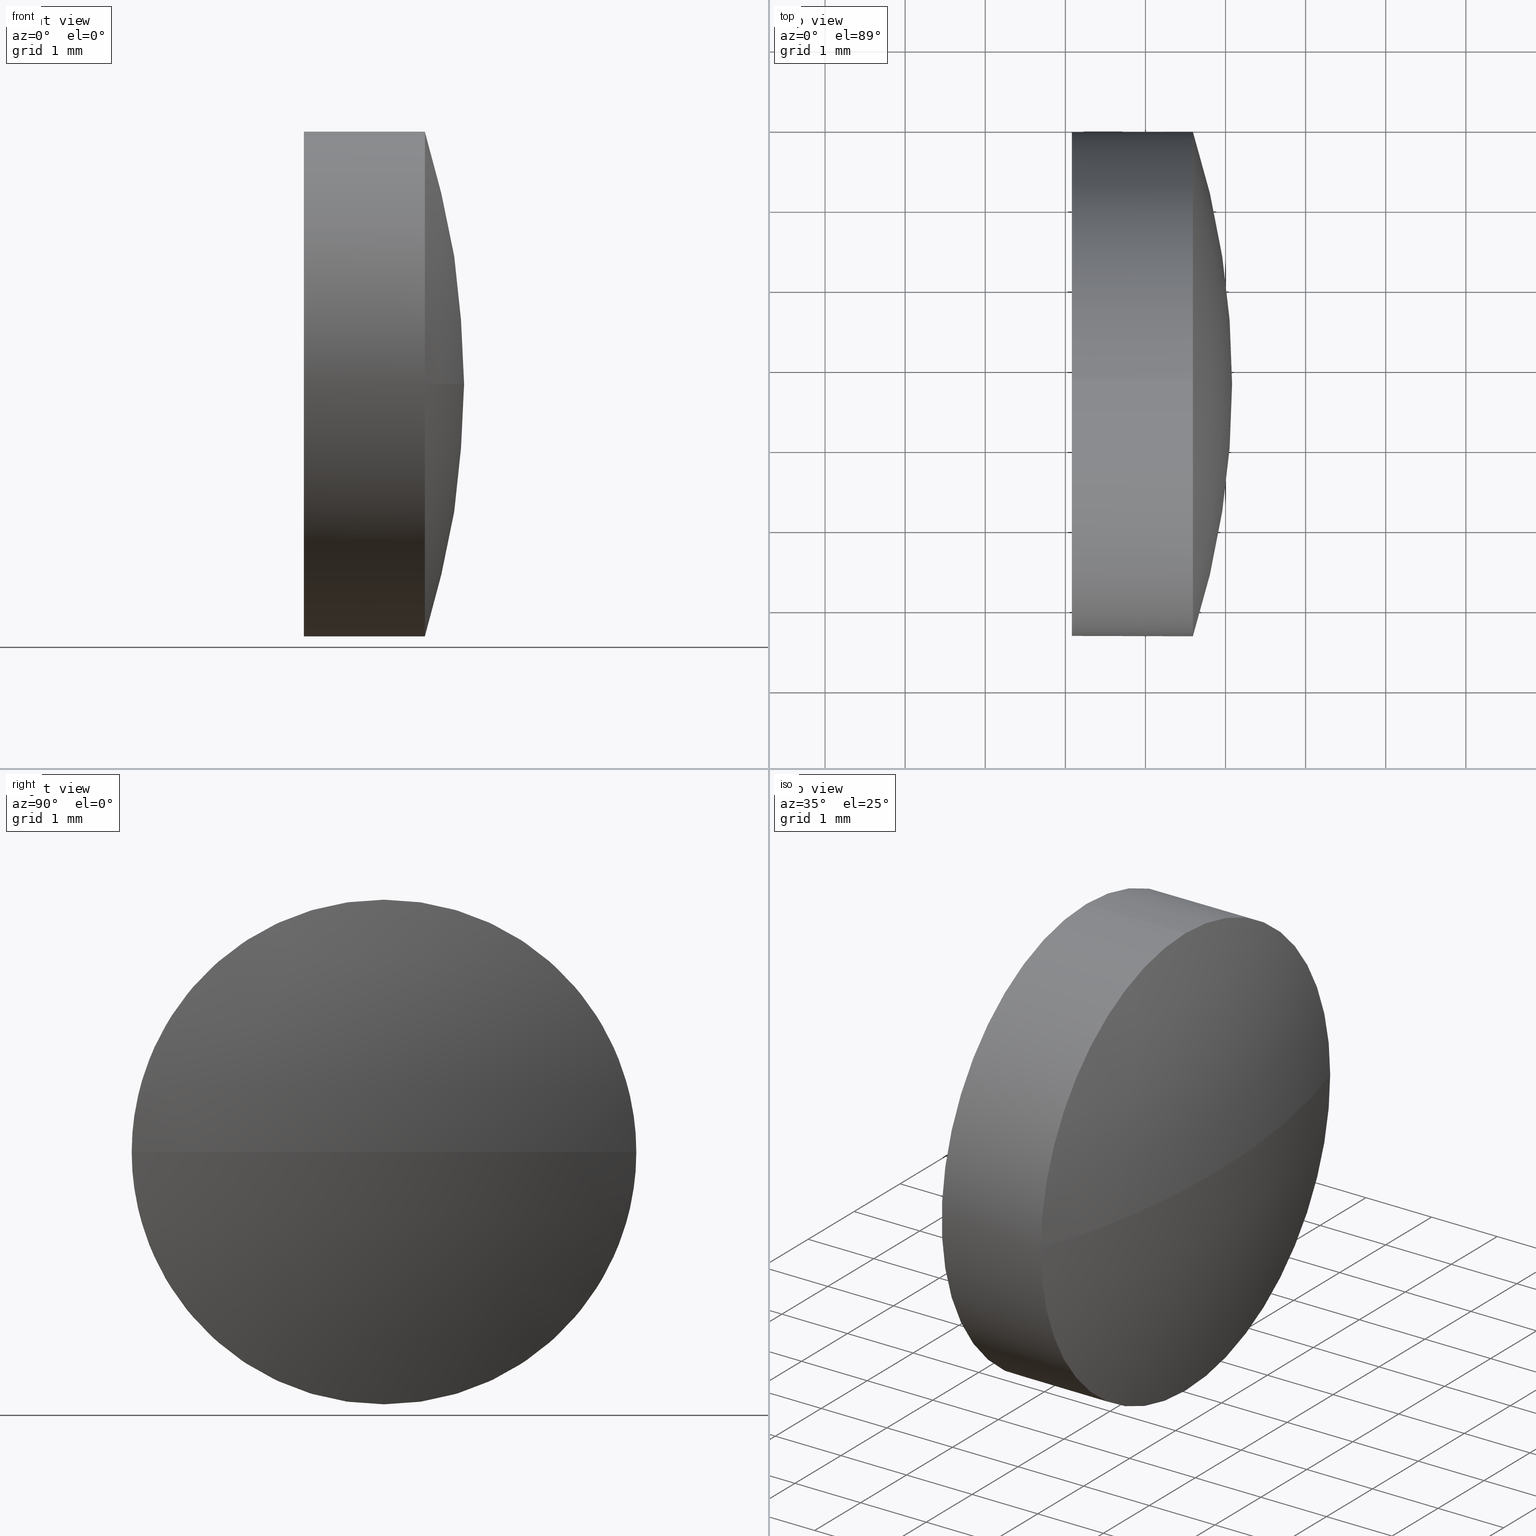
[diagram: canonical four-view strip — front | top / right | iso, engineering-drawing reading convention]
A machine part, canonical four-view strip (front | top / right | iso — engineering-drawing reading convention). The complete STEP part file that produces these views, byte-faithful:
ISO-10303-21;
HEADER;
FILE_DESCRIPTION (( 'STEP AP214' ),
    '1' );
FILE_NAME ('100182.STEP',
    '2019-05-21T02:54:04',
    ( '' ),
    ( '' ),
    'SwSTEP 2.0',
    'SolidWorks 2016',
    '' );
FILE_SCHEMA (( 'AUTOMOTIVE_DESIGN' ));
ENDSEC;

DATA;
#1 = DIRECTION ( 'NONE',  ( 0.0000000000000000000, 0.0000000000000000000, 1.000000000000000000 ) ) ;
#2 = CARTESIAN_POINT ( 'NONE',  ( 608.5916480025523500, -14.05118396197294000, 3.857637417314037000E-016 ) ) ;
#3 = DIRECTION ( 'NONE',  ( -1.000000000000000000, -0.0000000000000000000, -0.0000000000000000000 ) ) ;
#4 = DIRECTION ( 'NONE',  ( 0.0000000000000000000, -1.000000000000000000, 0.0000000000000000000 ) ) ;
#5 = ORIENTED_EDGE ( 'NONE', *, *, #34, .T. ) ;
#6 = CARTESIAN_POINT ( 'NONE',  ( 598.7116480025524700, -17.20118396197283800, 0.0000000000000000000 ) ) ;
#7 =( NAMED_UNIT ( * ) SI_UNIT ( $, .STERADIAN. ) SOLID_ANGLE_UNIT ( ) );
#8 = PRESENTATION_STYLE_ASSIGNMENT (( #120 ) ) ;
#9 =( NAMED_UNIT ( * ) PLANE_ANGLE_UNIT ( ) SI_UNIT ( $, .RADIAN. ) );
#10 = SURFACE_STYLE_FILL_AREA ( #151 ) ;
#11 = VERTEX_POINT ( 'NONE', #71 ) ;
#12 =( GEOMETRIC_REPRESENTATION_CONTEXT ( 3 ) GLOBAL_UNCERTAINTY_ASSIGNED_CONTEXT ( ( #41 ) ) GLOBAL_UNIT_ASSIGNED_CONTEXT ( ( #66, #64, #152 ) ) REPRESENTATION_CONTEXT ( 'NONE', 'WORKASPACE' ) );
#13 = SPHERICAL_SURFACE ( 'NONE', #68, 10.36999999999987000 ) ;
#14 = CLOSED_SHELL ( 'NONE', ( #185, #135, #142, #25, #55 ) ) ;
#15 = DIRECTION ( 'NONE',  ( 0.0000000000000000000, -1.224646799147353200E-016, 1.000000000000000000 ) ) ;
#16 = DIRECTION ( 'NONE',  ( -1.000000000000000000, -0.0000000000000000000, -0.0000000000000000000 ) ) ;
#17 = PLANE ( 'NONE',  #161 ) ;
#18 = ORIENTED_EDGE ( 'NONE', *, *, #23, .F. ) ;
#19 = DIRECTION ( 'NONE',  ( -1.000000000000000000, -0.0000000000000000000, -0.0000000000000000000 ) ) ;
#20 = CIRCLE ( 'NONE', #42, 3.149999999999998100 ) ;
#21 = EDGE_CURVE ( 'NONE', #133, #169, #31, .T. ) ;
#22 = ORIENTED_EDGE ( 'NONE', *, *, #82, .T. ) ;
#23 = EDGE_CURVE ( 'NONE', #69, #169, #20, .T. ) ;
#24 = EDGE_CURVE ( 'NONE', #153, #69, #150, .T. ) ;
#25 = ADVANCED_FACE ( 'NONE', ( #155 ), #127, .T. ) ;
#26 = CIRCLE ( 'NONE', #110, 3.149999999999998100 ) ;
#27 = DIRECTION ( 'NONE',  ( 0.0000000000000000000, 0.0000000000000000000, -1.000000000000000000 ) ) ;
#28 = AXIS2_PLACEMENT_3D ( 'NONE', #29, #19, #46 ) ;
#29 = CARTESIAN_POINT ( 'NONE',  ( 607.0816480025523600, -17.20118396197295900, 0.0000000000000000000 ) ) ;
#30 = DIRECTION ( 'NONE',  ( 0.0000000000000000000, 0.0000000000000000000, 1.000000000000000000 ) ) ;
#31 = LINE ( 'NONE', #40, #53 ) ;
#32 = FILL_AREA_STYLE_COLOUR ( '', #154 ) ;
#33 = FILL_AREA_STYLE_COLOUR ( '', #136 ) ;
#34 = EDGE_CURVE ( 'NONE', #11, #117, #95, .T. ) ;
#35 = FILL_AREA_STYLE ('',( #32 ) ) ;
#36 = PRESENTATION_LAYER_ASSIGNMENT (  '', '', ( #170 ) ) ;
#37 = SPHERICAL_SURFACE ( 'NONE', #123, 10.36999999999987000 ) ;
#38 = CARTESIAN_POINT ( 'NONE',  ( 598.7116480025524700, -17.20118396197283800, 0.0000000000000000000 ) ) ;
#39 = CARTESIAN_POINT ( 'NONE',  ( 607.0816480025523600, -17.20118396197295900, 3.149999999999998100 ) ) ;
#40 = CARTESIAN_POINT ( 'NONE',  ( 606.2759375900104700, -17.20118396197295900, -3.149999999999998100 ) ) ;
#41 = UNCERTAINTY_MEASURE_WITH_UNIT (LENGTH_MEASURE( 1.000000000000000100E-005 ), #66, 'distance_accuracy_value', 'NONE');
#42 = AXIS2_PLACEMENT_3D ( 'NONE', #100, #114, #129 ) ;
#43 = CARTESIAN_POINT ( 'NONE',  ( 607.0816480025523600, -17.20118396197295900, -3.149999999999998100 ) ) ;
#44 = ORIENTED_EDGE ( 'NONE', *, *, #70, .T. ) ;
#45 = CARTESIAN_POINT ( 'NONE',  ( 598.7116480025524700, -17.20118396197283800, 0.0000000000000000000 ) ) ;
#46 = DIRECTION ( 'NONE',  ( 0.0000000000000000000, 0.0000000000000000000, 1.000000000000000000 ) ) ;
#47 = ORIENTED_EDGE ( 'NONE', *, *, #111, .F. ) ;
#48 = CARTESIAN_POINT ( 'NONE',  ( 608.5916480025523500, -17.20118396197295900, 0.0000000000000000000 ) ) ;
#49 = PRODUCT_RELATED_PRODUCT_CATEGORY ( 'part', '', ( #147 ) ) ;
#50 = ORIENTED_EDGE ( 'NONE', *, *, #24, .F. ) ;
#51 = UNCERTAINTY_MEASURE_WITH_UNIT (LENGTH_MEASURE( 1.000000000000000100E-005 ), #106, 'distance_accuracy_value', 'NONE');
#52 = APPLICATION_PROTOCOL_DEFINITION ( 'draft international standard', 'automotive_design', 1998, #184 ) ;
#53 = VECTOR ( 'NONE', #16, 1000.000000000000000 ) ;
#54 = EDGE_CURVE ( 'NONE', #137, #153, #112, .T. ) ;
#55 = ADVANCED_FACE ( 'NONE', ( #80 ), #17, .F. ) ;
#56 = PRODUCT_DEFINITION_CONTEXT ( 'detailed design', #184, 'design' ) ;
#57 = AXIS2_PLACEMENT_3D ( 'NONE', #48, #105, #72 ) ;
#58 = DIRECTION ( 'NONE',  ( -1.000000000000000000, -0.0000000000000000000, -0.0000000000000000000 ) ) ;
#59 = DIRECTION ( 'NONE',  ( 0.0000000000000000000, 0.0000000000000000000, -1.000000000000000000 ) ) ;
#60 = VECTOR ( 'NONE', #146, 1000.000000000000000 ) ;
#61 = SURFACE_STYLE_USAGE ( .BOTH. , #91 ) ;
#62 =( NAMED_UNIT ( * ) SI_UNIT ( $, .STERADIAN. ) SOLID_ANGLE_UNIT ( ) );
#63 = ORIENTED_EDGE ( 'NONE', *, *, #24, .T. ) ;
#64 =( NAMED_UNIT ( * ) PLANE_ANGLE_UNIT ( ) SI_UNIT ( $, .RADIAN. ) );
#65 = AXIS2_PLACEMENT_3D ( 'NONE', #128, #3, #1 ) ;
#66 =( LENGTH_UNIT ( ) NAMED_UNIT ( * ) SI_UNIT ( .MILLI., .METRE. ) );
#67 = FACE_OUTER_BOUND ( 'NONE', #176, .T. ) ;
#68 = AXIS2_PLACEMENT_3D ( 'NONE', #45, #93, #4 ) ;
#69 = VERTEX_POINT ( 'NONE', #39 ) ;
#70 = EDGE_CURVE ( 'NONE', #11, #137, #103, .T. ) ;
#71 = CARTESIAN_POINT ( 'NONE',  ( 609.0816480025523600, -17.20118396197283800, 0.0000000000000000000 ) ) ;
#72 = DIRECTION ( 'NONE',  ( 0.0000000000000000000, 0.0000000000000000000, 1.000000000000000000 ) ) ;
#73 = DIRECTION ( 'NONE',  ( -1.000000000000000000, 0.0000000000000000000, 0.0000000000000000000 ) ) ;
#74 = CIRCLE ( 'NONE', #28, 3.149999999999998100 ) ;
#75 = DIRECTION ( 'NONE',  ( 0.0000000000000000000, 0.0000000000000000000, 1.000000000000000000 ) ) ;
#76 = APPLICATION_PROTOCOL_DEFINITION ( 'draft international standard', 'automotive_design', 1998, #81 ) ;
#77 = AXIS2_PLACEMENT_3D ( 'NONE', #38, #15, #157 ) ;
#78 = SURFACE_SIDE_STYLE ('',( #148 ) ) ;
#79 = PRODUCT_CONTEXT ( 'NONE', #81, 'mechanical' ) ;
#80 = FACE_OUTER_BOUND ( 'NONE', #94, .T. ) ;
#81 = APPLICATION_CONTEXT ( 'automotive_design' ) ;
#82 = EDGE_CURVE ( 'NONE', #169, #69, #74, .T. ) ;
#83 = ADVANCED_BREP_SHAPE_REPRESENTATION ( '100182', ( #175, #160 ), #12 ) ;
#84 = CYLINDRICAL_SURFACE ( 'NONE', #116, 3.149999999999998100 ) ;
#85 = ORIENTED_EDGE ( 'NONE', *, *, #183, .T. ) ;
#86 =( GEOMETRIC_REPRESENTATION_CONTEXT ( 3 ) GLOBAL_UNCERTAINTY_ASSIGNED_CONTEXT ( ( #51 ) ) GLOBAL_UNIT_ASSIGNED_CONTEXT ( ( #106, #9, #62 ) ) REPRESENTATION_CONTEXT ( 'NONE', 'WORKASPACE' ) );
#87 = EDGE_LOOP ( 'NONE', ( #97, #89, #186, #63, #166 ) ) ;
#88 = CARTESIAN_POINT ( 'NONE',  ( 606.2759375900104700, -17.20118396197295900, 0.0000000000000000000 ) ) ;
#89 = ORIENTED_EDGE ( 'NONE', *, *, #96, .T. ) ;
#90 = CARTESIAN_POINT ( 'NONE',  ( 608.5916480025523500, -17.20118396197295900, 0.0000000000000000000 ) ) ;
#91 = SURFACE_SIDE_STYLE ('',( #10 ) ) ;
#92 = ORIENTED_EDGE ( 'NONE', *, *, #111, .T. ) ;
#93 = DIRECTION ( 'NONE',  ( 0.0000000000000000000, 0.0000000000000000000, 1.000000000000000000 ) ) ;
#94 = EDGE_LOOP ( 'NONE', ( #132, #22 ) ) ;
#95 = CIRCLE ( 'NONE', #77, 10.36999999999987000 ) ;
#96 = EDGE_CURVE ( 'NONE', #133, #137, #141, .T. ) ;
#97 = ORIENTED_EDGE ( 'NONE', *, *, #21, .F. ) ;
#98 = PRESENTATION_LAYER_ASSIGNMENT (  '', '', ( #107 ) ) ;
#99 = AXIS2_PLACEMENT_3D ( 'NONE', #90, #163, #75 ) ;
#100 = CARTESIAN_POINT ( 'NONE',  ( 607.0816480025523600, -17.20118396197295900, 0.0000000000000000000 ) ) ;
#101 = CIRCLE ( 'NONE', #57, 3.149999999999998100 ) ;
#102 = DIRECTION ( 'NONE',  ( -1.000000000000000000, -0.0000000000000000000, -0.0000000000000000000 ) ) ;
#103 = CIRCLE ( 'NONE', #139, 10.36999999999988000 ) ;
#104 = DIRECTION ( 'NONE',  ( 0.0000000000000000000, -1.000000000000000000, 0.0000000000000000000 ) ) ;
#105 = DIRECTION ( 'NONE',  ( -1.000000000000000000, -0.0000000000000000000, -0.0000000000000000000 ) ) ;
#106 =( LENGTH_UNIT ( ) NAMED_UNIT ( * ) SI_UNIT ( .MILLI., .METRE. ) );
#107 = STYLED_ITEM ( 'NONE', ( #145 ), #175 ) ;
#108 = MECHANICAL_DESIGN_GEOMETRIC_PRESENTATION_REPRESENTATION (  '', ( #107 ), #173 ) ;
#109 = DIRECTION ( 'NONE',  ( 1.000000000000000000, 0.0000000000000000000, 0.0000000000000000000 ) ) ;
#110 = AXIS2_PLACEMENT_3D ( 'NONE', #179, #182, #30 ) ;
#111 = EDGE_CURVE ( 'NONE', #117, #133, #26, .T. ) ;
#112 = CIRCLE ( 'NONE', #122, 3.149999999999998100 ) ;
#113 = CARTESIAN_POINT ( 'NONE',  ( 607.0816480025523600, -17.20118396197295900, 0.0000000000000000000 ) ) ;
#114 = DIRECTION ( 'NONE',  ( -1.000000000000000000, -0.0000000000000000000, -0.0000000000000000000 ) ) ;
#115 = CARTESIAN_POINT ( 'NONE',  ( 0.0000000000000000000, 0.0000000000000000000, 0.0000000000000000000 ) ) ;
#116 = AXIS2_PLACEMENT_3D ( 'NONE', #88, #102, #131 ) ;
#117 = VERTEX_POINT ( 'NONE', #2 ) ;
#118 = CARTESIAN_POINT ( 'NONE',  ( 608.5916480025523500, -17.20118396197295900, 3.149999999999998100 ) ) ;
#119 =( LENGTH_UNIT ( ) NAMED_UNIT ( * ) SI_UNIT ( .MILLI., .METRE. ) );
#120 = SURFACE_STYLE_USAGE ( .BOTH. , #78 ) ;
#121 = EDGE_LOOP ( 'NONE', ( #181, #5, #158, #124 ) ) ;
#122 = AXIS2_PLACEMENT_3D ( 'NONE', #177, #58, #126 ) ;
#123 = AXIS2_PLACEMENT_3D ( 'NONE', #6, #149, #104 ) ;
#124 = ORIENTED_EDGE ( 'NONE', *, *, #54, .F. ) ;
#125 = ORIENTED_EDGE ( 'NONE', *, *, #96, .F. ) ;
#126 = DIRECTION ( 'NONE',  ( 0.0000000000000000000, 0.0000000000000000000, 1.000000000000000000 ) ) ;
#127 = CYLINDRICAL_SURFACE ( 'NONE', #65, 3.149999999999998100 ) ;
#128 = CARTESIAN_POINT ( 'NONE',  ( 606.2759375900104700, -17.20118396197295900, 0.0000000000000000000 ) ) ;
#129 = DIRECTION ( 'NONE',  ( 0.0000000000000000000, 0.0000000000000000000, 1.000000000000000000 ) ) ;
#130 = EDGE_LOOP ( 'NONE', ( #92, #171, #18, #50, #85 ) ) ;
#131 = DIRECTION ( 'NONE',  ( 0.0000000000000000000, 0.0000000000000000000, 1.000000000000000000 ) ) ;
#132 = ORIENTED_EDGE ( 'NONE', *, *, #23, .T. ) ;
#133 = VERTEX_POINT ( 'NONE', #162 ) ;
#134 = FACE_OUTER_BOUND ( 'NONE', #121, .T. ) ;
#135 = ADVANCED_FACE ( 'NONE', ( #134 ), #37, .T. ) ;
#136 = COLOUR_RGB ( '',1.000000000000000000, 1.000000000000000000, 1.000000000000000000 ) ;
#137 = VERTEX_POINT ( 'NONE', #178 ) ;
#138 = PRODUCT_DEFINITION ( 'δ֪', '', #156, #56 ) ;
#139 = AXIS2_PLACEMENT_3D ( 'NONE', #159, #59, #73 ) ;
#140 = FACE_OUTER_BOUND ( 'NONE', #130, .T. ) ;
#141 = CIRCLE ( 'NONE', #99, 3.149999999999998100 ) ;
#142 = ADVANCED_FACE ( 'NONE', ( #67 ), #13, .T. ) ;
#143 = DIRECTION ( 'NONE',  ( 1.000000000000000000, 0.0000000000000000000, 0.0000000000000000000 ) ) ;
#144 = CARTESIAN_POINT ( 'NONE',  ( 606.2759375900104700, -17.20118396197295900, 3.149999999999998100 ) ) ;
#145 = PRESENTATION_STYLE_ASSIGNMENT (( #61 ) ) ;
#146 = DIRECTION ( 'NONE',  ( -1.000000000000000000, -0.0000000000000000000, -0.0000000000000000000 ) ) ;
#147 = PRODUCT ( '100182', '100182', '', ( #79 ) ) ;
#148 = SURFACE_STYLE_FILL_AREA ( #35 ) ;
#149 = DIRECTION ( 'NONE',  ( 0.0000000000000000000, 0.0000000000000000000, 1.000000000000000000 ) ) ;
#150 = LINE ( 'NONE', #144, #60 ) ;
#151 = FILL_AREA_STYLE ('',( #33 ) ) ;
#152 =( NAMED_UNIT ( * ) SI_UNIT ( $, .STERADIAN. ) SOLID_ANGLE_UNIT ( ) );
#153 = VERTEX_POINT ( 'NONE', #118 ) ;
#154 = COLOUR_RGB ( '',1.000000000000000000, 1.000000000000000000, 1.000000000000000000 ) ;
#155 = FACE_OUTER_BOUND ( 'NONE', #87, .T. ) ;
#156 = PRODUCT_DEFINITION_FORMATION_WITH_SPECIFIED_SOURCE ( '�κ�', '', #147, .NOT_KNOWN. ) ;
#157 = DIRECTION ( 'NONE',  ( 0.0000000000000000000, -1.000000000000000000, -1.224646799147353200E-016 ) ) ;
#158 = ORIENTED_EDGE ( 'NONE', *, *, #183, .F. ) ;
#159 = CARTESIAN_POINT ( 'NONE',  ( 598.7116480025524700, -17.20118396197283800, 0.0000000000000000000 ) ) ;
#160 = AXIS2_PLACEMENT_3D ( 'NONE', #115, #167, #109 ) ;
#161 = AXIS2_PLACEMENT_3D ( 'NONE', #113, #143, #27 ) ;
#162 = CARTESIAN_POINT ( 'NONE',  ( 608.5916480025523500, -17.20118396197295900, -3.149999999999998100 ) ) ;
#163 = DIRECTION ( 'NONE',  ( -1.000000000000000000, -0.0000000000000000000, -0.0000000000000000000 ) ) ;
#164 = MECHANICAL_DESIGN_GEOMETRIC_PRESENTATION_REPRESENTATION (  '', ( #170 ), #86 ) ;
#165 =( NAMED_UNIT ( * ) PLANE_ANGLE_UNIT ( ) SI_UNIT ( $, .RADIAN. ) );
#166 = ORIENTED_EDGE ( 'NONE', *, *, #82, .F. ) ;
#167 = DIRECTION ( 'NONE',  ( 0.0000000000000000000, 0.0000000000000000000, 1.000000000000000000 ) ) ;
#168 = UNCERTAINTY_MEASURE_WITH_UNIT (LENGTH_MEASURE( 1.000000000000000100E-005 ), #119, 'distance_accuracy_value', 'NONE');
#169 = VERTEX_POINT ( 'NONE', #43 ) ;
#170 = STYLED_ITEM ( 'NONE', ( #8 ), #83 ) ;
#171 = ORIENTED_EDGE ( 'NONE', *, *, #21, .T. ) ;
#172 = SHAPE_DEFINITION_REPRESENTATION ( #180, #83 ) ;
#173 =( GEOMETRIC_REPRESENTATION_CONTEXT ( 3 ) GLOBAL_UNCERTAINTY_ASSIGNED_CONTEXT ( ( #168 ) ) GLOBAL_UNIT_ASSIGNED_CONTEXT ( ( #119, #165, #7 ) ) REPRESENTATION_CONTEXT ( 'NONE', 'WORKASPACE' ) );
#174 = ORIENTED_EDGE ( 'NONE', *, *, #34, .F. ) ;
#175 = MANIFOLD_SOLID_BREP ( '��ת1', #14 ) ;
#176 = EDGE_LOOP ( 'NONE', ( #174, #44, #125, #47 ) ) ;
#177 = CARTESIAN_POINT ( 'NONE',  ( 608.5916480025523500, -17.20118396197295900, 0.0000000000000000000 ) ) ;
#178 = CARTESIAN_POINT ( 'NONE',  ( 608.5916480025523500, -20.35118396197285400, 0.0000000000000000000 ) ) ;
#179 = CARTESIAN_POINT ( 'NONE',  ( 608.5916480025523500, -17.20118396197295900, 0.0000000000000000000 ) ) ;
#180 = PRODUCT_DEFINITION_SHAPE ( 'NONE', 'NONE',  #138 ) ;
#181 = ORIENTED_EDGE ( 'NONE', *, *, #70, .F. ) ;
#182 = DIRECTION ( 'NONE',  ( -1.000000000000000000, -0.0000000000000000000, -0.0000000000000000000 ) ) ;
#183 = EDGE_CURVE ( 'NONE', #153, #117, #101, .T. ) ;
#184 = APPLICATION_CONTEXT ( 'automotive_design' ) ;
#185 = ADVANCED_FACE ( 'NONE', ( #140 ), #84, .T. ) ;
#186 = ORIENTED_EDGE ( 'NONE', *, *, #54, .T. ) ;
ENDSEC;
END-ISO-10303-21;
